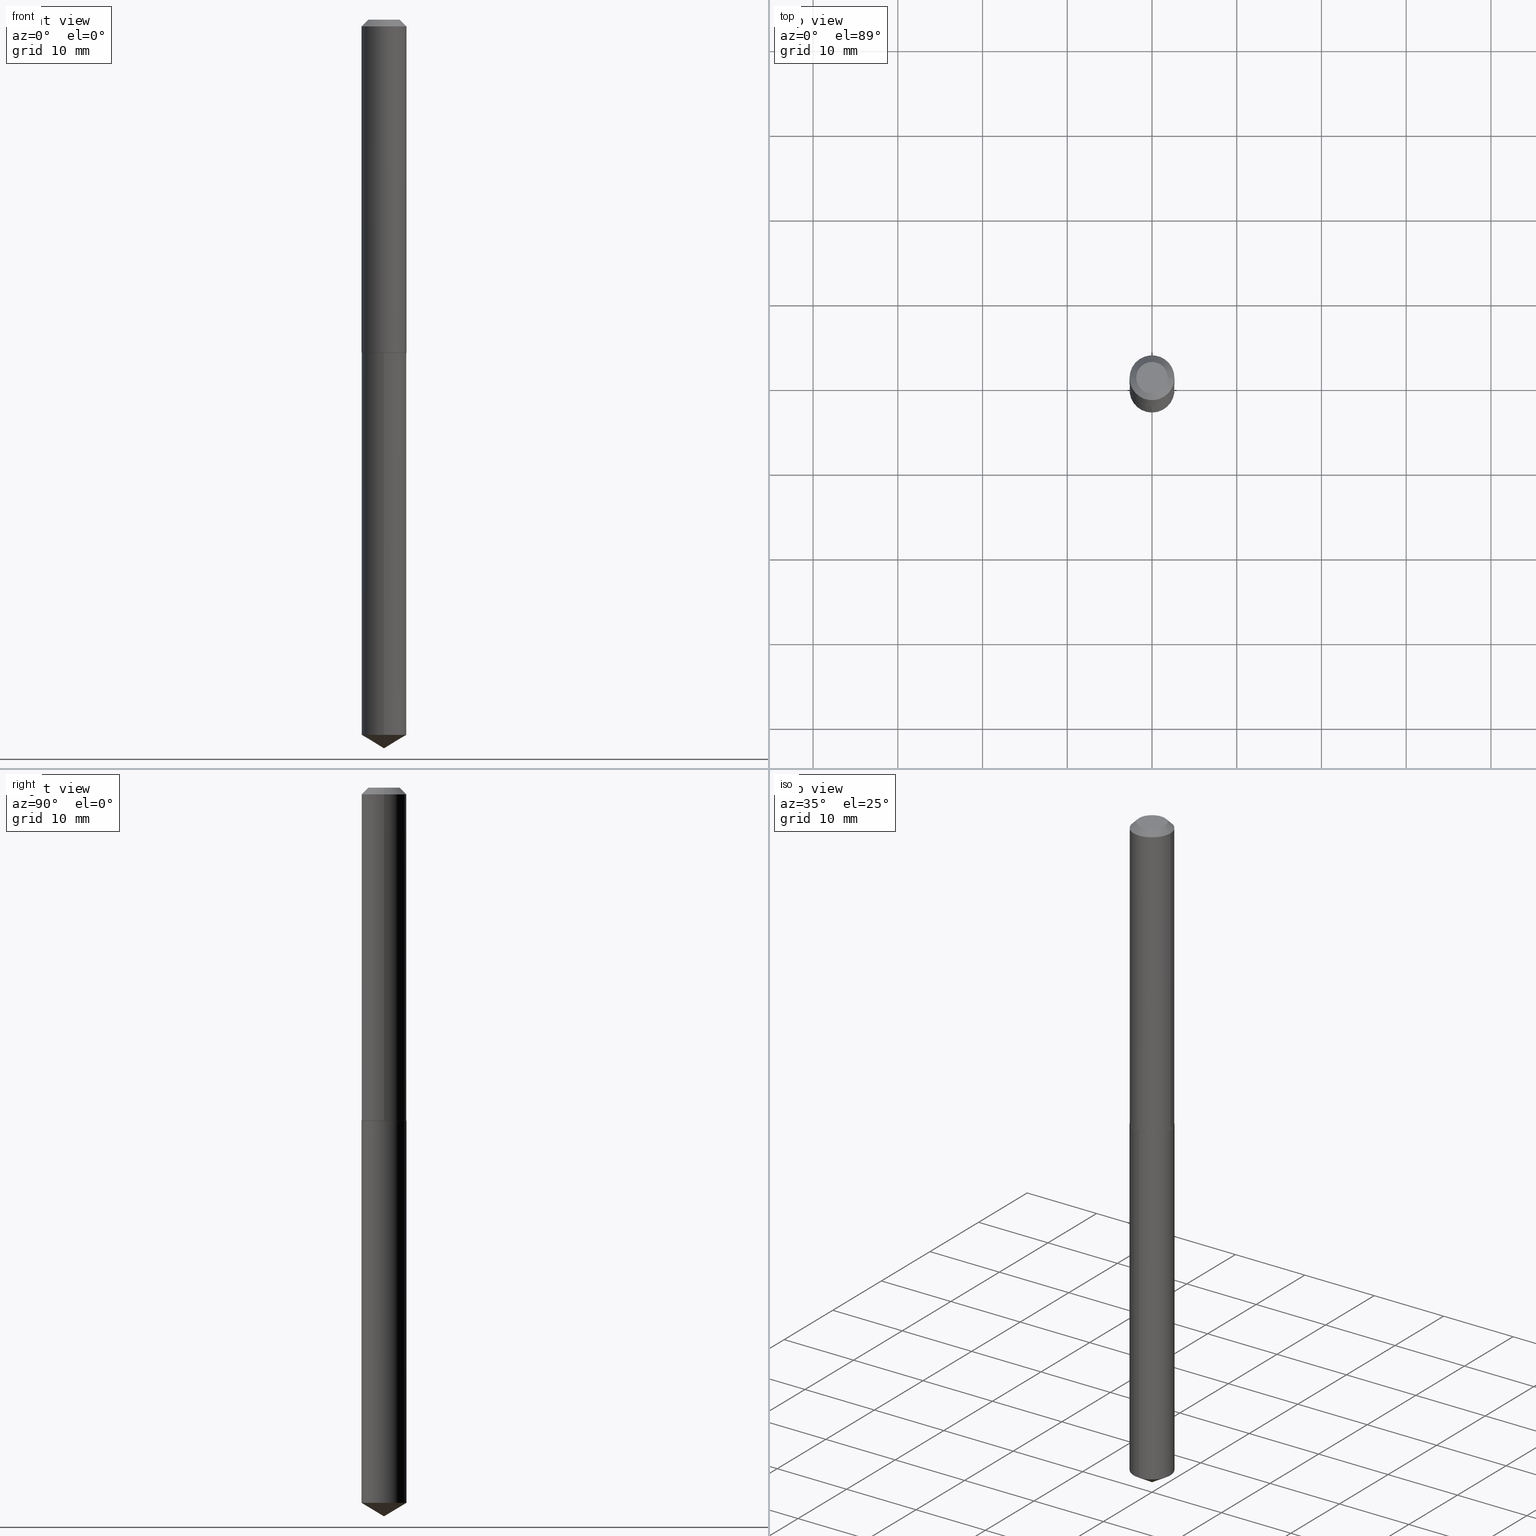
[diagram: canonical four-view strip — front | top / right | iso, engineering-drawing reading convention]
A machine part, canonical four-view strip (front | top / right | iso — engineering-drawing reading convention). The complete STEP part file that produces these views, byte-faithful:
ISO-10303-21;
HEADER;
FILE_DESCRIPTION (( 'STEP AP203' ),
    '1' );
FILE_NAME ('61086.STEP',
    '2024-04-23T03:33:26',
    ( '' ),
    ( '' ),
    'SwSTEP 2.0',
    'SolidWorks 2023',
    '' );
FILE_SCHEMA (( 'CONFIG_CONTROL_DESIGN' ));
ENDSEC;

DATA;
#1 = EDGE_CURVE ( 'NONE', #156, #247, #317, .T. ) ;
#2 = CARTESIAN_POINT ( 'NONE',  ( 3.783873883810261606E-29, -5.402369075591998725E-15, -1.547299999999999898 ) ) ;
#3 = FACE_OUTER_BOUND ( 'NONE', #51, .T. ) ;
#4 = ORIENTED_EDGE ( 'NONE', *, *, #1, .F. ) ;
#5 = DIRECTION ( 'NONE',  ( -2.445468806185136597E-29, 3.491481338843145583E-15, 1.000000000000000000 ) ) ;
#6 = EDGE_CURVE ( 'NONE', #163, #287, #95, .T. ) ;
#7 = VERTEX_POINT ( 'NONE', #265 ) ;
#8 = VECTOR ( 'NONE', #141, 39.37007874015748143 ) ;
#9 = AXIS2_PLACEMENT_3D ( 'NONE', #133, #69, #192 ) ;
#10 = DIRECTION ( 'NONE',  ( 1.000000000000000000, -6.982962677686269077E-15, 0.000000000000000000 ) ) ;
#11 = ORIENTED_EDGE ( 'NONE', *, *, #1, .T. ) ;
#12 = DATE_AND_TIME ( #172, #248 ) ;
#13 = CARTESIAN_POINT ( 'NONE',  ( 8.279856005711560428E-29, -1.182147690713580966E-14, -3.385800000000000143 ) ) ;
#14 = ORIENTED_EDGE ( 'NONE', *, *, #333, .F. ) ;
#15 =( CONVERSION_BASED_UNIT ( 'INCH', #320 ) LENGTH_UNIT ( ) NAMED_UNIT ( #213 ) );
#16 = DIRECTION ( 'NONE',  ( 2.445468806185136597E-29, -3.491481338843145583E-15, -1.000000000000000000 ) ) ;
#17 = CIRCLE ( 'NONE', #153, 0.1043499999999999844 ) ;
#18 = ORIENTED_EDGE ( 'NONE', *, *, #59, .T. ) ;
#19 = UNCERTAINTY_MEASURE_WITH_UNIT (LENGTH_MEASURE( 1.000000000000000082E-05 ), #15, 'distance_accuracy_value', 'NONE');
#20 = DIRECTION ( 'NONE',  ( 1.000000000000000000, -6.982962677686265133E-15, 4.876195246087108042E-29 ) ) ;
#21 = DIRECTION ( 'NONE',  ( 1.000000000000000000, -6.982962677686264344E-15, 0.000000000000000000 ) ) ;
#22 = CC_DESIGN_PERSON_AND_ORGANIZATION_ASSIGNMENT ( #61, #184, ( #217 ) ) ;
#23 = DATE_AND_TIME ( #300, #318 ) ;
#24 = PRODUCT_DEFINITION_FORMATION_WITH_SPECIFIED_SOURCE ( 'ANY', '', #222, .NOT_KNOWN. ) ;
#25 = CONICAL_SURFACE ( 'NONE', #105, 65.52281426576843160, 1.029744258676654534 ) ;
#26 = AXIS2_PLACEMENT_3D ( 'NONE', #264, #16, #120 ) ;
#27 = APPROVAL_DATE_TIME ( #214, #210 ) ;
#28 = CARTESIAN_POINT ( 'NONE',  ( 7.642090019328602662E-31, -1.091087918388490267E-16, -0.03125000000000020817 ) ) ;
#29 = DIRECTION ( 'NONE',  ( 0.000000000000000000, 0.000000000000000000, 1.000000000000000000 ) ) ;
#30 = DIRECTION ( 'NONE',  ( -2.445468806185136597E-29, 3.491481338843145583E-15, 1.000000000000000000 ) ) ;
#31 = EDGE_CURVE ( 'NONE', #287, #104, #282, .T. ) ;
#32 = SECURITY_CLASSIFICATION ( '', '', #345 ) ;
#33 = CARTESIAN_POINT ( 'NONE',  ( 3.783873883810261045E-29, -5.402369075591997936E-15, -1.547299999999999676 ) ) ;
#34 = CC_DESIGN_PERSON_AND_ORGANIZATION_ASSIGNMENT ( #319, #116, ( #24 ) ) ;
#35 = DIRECTION ( 'NONE',  ( -6.982962677686265922E-15, -1.000000000000000000, 3.468864327941594214E-15 ) ) ;
#36 = DIRECTION ( 'NONE',  ( -2.445468806185136597E-29, 3.491481338843145583E-15, 1.000000000000000000 ) ) ;
#37 = APPLICATION_CONTEXT ( 'configuration controlled 3d designs of mechanical parts and assemblies' ) ;
#38 = CIRCLE ( 'NONE', #93, 0.1038500000000004558 ) ;
#39 = DIRECTION ( 'NONE',  ( -2.445422308860357196E-29, 3.491547925658693024E-15, 1.000000000000000000 ) ) ;
#40 = ORIENTED_EDGE ( 'NONE', *, *, #362, .T. ) ;
#41 = EDGE_CURVE ( 'NONE', #163, #55, #89, .T. ) ;
#42 = FACE_OUTER_BOUND ( 'NONE', #342, .T. ) ;
#43 = ORIENTED_EDGE ( 'NONE', *, *, #41, .T. ) ;
#44 = PERSON_AND_ORGANIZATION ( #389, #199 ) ;
#45 = DIRECTION ( 'NONE',  ( -2.445422308860357196E-29, 3.491547925658693024E-15, 1.000000000000000000 ) ) ;
#46 = VERTEX_POINT ( 'NONE', #298 ) ;
#47 = PERSON_AND_ORGANIZATION_ROLE ( 'classification_officer' ) ;
#48 = CLOSED_SHELL ( 'NONE', ( #67, #167, #75, #239, #260, #88, #385, #268 ) ) ;
#49 = DIRECTION ( 'NONE',  ( -2.445422308860357196E-29, 3.491547925658693024E-15, 1.000000000000000000 ) ) ;
#50 = AXIS2_PLACEMENT_3D ( 'NONE', #152, #29, #211 ) ;
#51 = EDGE_LOOP ( 'NONE', ( #348, #364, #259, #225 ) ) ;
#52 = FACE_OUTER_BOUND ( 'NONE', #136, .T. ) ;
#53 = ORIENTED_EDGE ( 'NONE', *, *, #31, .F. ) ;
#54 = CARTESIAN_POINT ( 'NONE',  ( 8.279710853339399417E-29, -1.182168296669520479E-14, -3.385800000000000143 ) ) ;
#55 = VERTEX_POINT ( 'NONE', #215 ) ;
#56 = AXIS2_PLACEMENT_3D ( 'NONE', #64, #30, #379 ) ;
#57 = CIRCLE ( 'NONE', #256, 0.1043499999999999844 ) ;
#58 = CARTESIAN_POINT ( 'NONE',  ( 0.1043499999999999844, -8.250017579063083057E-16, -0.03125000000000020817 ) ) ;
#59 = EDGE_CURVE ( 'NONE', #321, #46, #38, .T. ) ;
#60 = DIRECTION ( 'NONE',  ( -2.445422308860357196E-29, 3.491547925658693024E-15, 1.000000000000000000 ) ) ;
#61 = PERSON_AND_ORGANIZATION ( #389, #199 ) ;
#62 = VECTOR ( 'NONE', #158, 39.37007874015748143 ) ;
#63 = FACE_OUTER_BOUND ( 'NONE', #370, .T. ) ;
#64 = CARTESIAN_POINT ( 'NONE',  ( 0.000000000000000000, 0.000000000000000000, 0.000000000000000000 ) ) ;
#65 = CARTESIAN_POINT ( 'NONE',  ( 7.642090019328602662E-31, -1.091087918388490267E-16, -0.03125000000000020817 ) ) ;
#66 = LOCAL_TIME ( 23, 33, 26.00000000000000000, #154 ) ;
#67 = ADVANCED_FACE ( 'NONE', ( #63 ), #99, .T. ) ;
#68 = PLANE ( 'NONE',  #315 ) ;
#69 = DIRECTION ( 'NONE',  ( -2.445468806185136597E-29, 3.491481338843145583E-15, 1.000000000000000000 ) ) ;
#70 = CC_DESIGN_PERSON_AND_ORGANIZATION_ASSIGNMENT ( #147, #119, ( #24 ) ) ;
#71 = AXIS2_PLACEMENT_3D ( 'NONE', #2, #162, #106 ) ;
#72 = ORIENTED_EDGE ( 'NONE', *, *, #338, .T. ) ;
#73 = CARTESIAN_POINT ( 'NONE',  ( -7.286721554165238553E-16, -0.1043500000000053829, -1.547299999999999676 ) ) ;
#74 = EDGE_LOOP ( 'NONE', ( #263, #197, #129, #200 ) ) ;
#75 = ADVANCED_FACE ( 'NONE', ( #361 ), #233, .T. ) ;
#76 = DIRECTION ( 'NONE',  ( -2.445422308860357196E-29, 3.491547925658693024E-15, 1.000000000000000000 ) ) ;
#77 = VERTEX_POINT ( 'NONE', #332 ) ;
#78 = AXIS2_PLACEMENT_3D ( 'NONE', #226, #36, #343 ) ;
#79 = LINE ( 'NONE', #13, #122 ) ;
#80 = CONICAL_SURFACE ( 'NONE', #151, 65.52281426576843160, 1.029744258676654534 ) ;
#81 = ADVANCED_BREP_SHAPE_REPRESENTATION ( '61086', ( #251, #382, #50 ), #216 ) ;
#82 = ORIENTED_EDGE ( 'NONE', *, *, #338, .F. ) ;
#83 = DATE_TIME_ROLE ( 'classification_date' ) ;
#84 = DIRECTION ( 'NONE',  ( -6.982962677686265922E-15, -1.000000000000000000, 5.235932905920965262E-15 ) ) ;
#85 = CARTESIAN_POINT ( 'NONE',  ( 3.782651149407169365E-29, -5.400623334922577222E-15, -1.546799999999999953 ) ) ;
#86 = DATE_AND_TIME ( #174, #137 ) ;
#87 = ORIENTED_EDGE ( 'NONE', *, *, #180, .F. ) ;
#88 = ADVANCED_FACE ( 'NONE', ( #148 ), #212, .T. ) ;
#89 = CIRCLE ( 'NONE', #356, 0.07309999999999999831 ) ;
#90 = DIRECTION ( 'NONE',  ( -2.445468806185136597E-29, 3.491481338843145583E-15, 1.000000000000000000 ) ) ;
#91 = APPROVAL_STATUS ( 'not_yet_approved' ) ;
#92 = EDGE_CURVE ( 'NONE', #321, #156, #176, .T. ) ;
#93 = AXIS2_PLACEMENT_3D ( 'NONE', #33, #90, #329 ) ;
#94 = DIRECTION ( 'NONE',  ( -2.445468806185136597E-29, 3.491481338843145583E-15, 1.000000000000000000 ) ) ;
#95 = LINE ( 'NONE', #246, #297 ) ;
#96 = EDGE_CURVE ( 'NONE', #314, #171, #190, .T. ) ;
#97 = CYLINDRICAL_SURFACE ( 'NONE', #157, 0.1043500000000000816 ) ;
#98 = CC_DESIGN_APPROVAL ( #210, ( #217 ) ) ;
#99 = CONICAL_SURFACE ( 'NONE', #224, 0.1043499999999999844, 0.7853981633974449483 ) ;
#100 = DIRECTION ( 'NONE',  ( -2.445468806185136597E-29, 3.491481338843145583E-15, 1.000000000000000000 ) ) ;
#101 = DIRECTION ( 'NONE',  ( 6.982962677686265922E-15, 1.000000000000000000, -3.491547925658693418E-15 ) ) ;
#102 = EDGE_CURVE ( 'NONE', #55, #104, #277, .T. ) ;
#103 = DIRECTION ( 'NONE',  ( 2.445422308860356635E-29, -3.491547925658693418E-15, -1.000000000000000000 ) ) ;
#104 = VERTEX_POINT ( 'NONE', #269 ) ;
#105 = AXIS2_PLACEMENT_3D ( 'NONE', #340, #39, #35 ) ;
#106 = DIRECTION ( 'NONE',  ( -6.982962677686265922E-15, -1.000000000000000000, 2.617966452960482631E-15 ) ) ;
#107 = ORIENTED_EDGE ( 'NONE', *, *, #369, .F. ) ;
#108 = EDGE_CURVE ( 'NONE', #7, #314, #383, .T. ) ;
#109 = APPROVAL_DATE_TIME ( #86, #150 ) ;
#110 = LINE ( 'NONE', #373, #270 ) ;
#111 = DIRECTION ( 'NONE',  ( 6.090539988449779224E-15, 0.8571673007021141100, 0.5150380749100511579 ) ) ;
#112 = PRODUCT_DEFINITION_SHAPE ( 'NONE', 'NONE',  #217 ) ;
#113 = ORIENTED_EDGE ( 'NONE', *, *, #92, .T. ) ;
#114 = DIRECTION ( 'NONE',  ( -2.445422308860357196E-29, 3.491547925658693024E-15, 1.000000000000000000 ) ) ;
#115 = ORIENTED_EDGE ( 'NONE', *, *, #311, .T. ) ;
#116 = PERSON_AND_ORGANIZATION_ROLE ( 'design_supplier' ) ;
#117 = CARTESIAN_POINT ( 'NONE',  ( 3.783873883810261606E-29, -5.402369075591998725E-15, -1.547299999999999898 ) ) ;
#118 = CARTESIAN_POINT ( 'NONE',  ( -0.1043500000000001787, -4.659171990156911506E-15, -1.546799999999999953 ) ) ;
#119 = PERSON_AND_ORGANIZATION_ROLE ( 'creator' ) ;
#120 = DIRECTION ( 'NONE',  ( -1.000000000000000000, 6.982962677686266711E-15, 0.000000000000000000 ) ) ;
#121 = CARTESIAN_POINT ( 'NONE',  ( 7.414513447657022001E-16, 0.1043499999999945999, -1.547300000000000120 ) ) ;
#122 = VECTOR ( 'NONE', #111, 39.37007874015748143 ) ;
#123 = AXIS2_PLACEMENT_3D ( 'NONE', #221, #337, #159 ) ;
#124 = COORDINATED_UNIVERSAL_TIME_OFFSET ( 5, 0, .BEHIND. ) ;
#125 = DIRECTION ( 'NONE',  ( -0.7071067811865451302, 2.468850131082231817E-15, -0.7071067811865499042 ) ) ;
#126 = CIRCLE ( 'NONE', #71, 0.1043499999999999844 ) ;
#127 = MECHANICAL_CONTEXT ( 'NONE', #339, 'mechanical' ) ;
#128 = ORIENTED_EDGE ( 'NONE', *, *, #96, .F. ) ;
#129 = ORIENTED_EDGE ( 'NONE', *, *, #6, .T. ) ;
#130 = CARTESIAN_POINT ( 'NONE',  ( 0.000000000000000000, 0.000000000000000000, 0.000000000000000000 ) ) ;
#131 = CIRCLE ( 'NONE', #289, 0.1038500000000004558 ) ;
#132 = VECTOR ( 'NONE', #378, 39.37007874015748143 ) ;
#133 = CARTESIAN_POINT ( 'NONE',  ( 7.642090019328602662E-31, -1.091087918388490267E-16, -0.03125000000000020817 ) ) ;
#134 = ORIENTED_EDGE ( 'NONE', *, *, #306, .F. ) ;
#135 = CARTESIAN_POINT ( 'NONE',  ( 0.1043500000000001787, -6.129295490339141210E-15, -1.546799999999999953 ) ) ;
#136 = EDGE_LOOP ( 'NONE', ( #390, #388, #353, #128 ) ) ;
#137 = LOCAL_TIME ( 23, 33, 26.00000000000000000, #293 ) ;
#138 = CARTESIAN_POINT ( 'NONE',  ( 8.126455295285522582E-29, -1.160266056074924409E-14, -3.323100194404474461 ) ) ;
#139 = EDGE_CURVE ( 'NONE', #104, #287, #271, .T. ) ;
#140 = APPROVAL_STATUS ( 'not_yet_approved' ) ;
#141 = DIRECTION ( 'NONE',  ( -5.985567269335943646E-15, -0.8571673007021105573, 0.5150380749100571531 ) ) ;
#142 = ORIENTED_EDGE ( 'NONE', *, *, #333, .T. ) ;
#143 = APPROVAL_DATE_TIME ( #377, #279 ) ;
#144 = ORIENTED_EDGE ( 'NONE', *, *, #311, .F. ) ;
#145 = DIRECTION ( 'NONE',  ( -6.982962677686265922E-15, -1.000000000000000000, 2.617966452960482631E-15 ) ) ;
#146 = ORIENTED_EDGE ( 'NONE', *, *, #160, .F. ) ;
#147 = PERSON_AND_ORGANIZATION ( #389, #199 ) ;
#148 = FACE_OUTER_BOUND ( 'NONE', #227, .T. ) ;
#149 = DESIGN_CONTEXT ( 'detailed design', #37, 'design' ) ;
#150 = APPROVAL ( #140, 'UNSPECIFIED' ) ;
#151 = AXIS2_PLACEMENT_3D ( 'NONE', #381, #114, #325 ) ;
#152 = CARTESIAN_POINT ( 'NONE',  ( 0.000000000000000000, 0.000000000000000000, 0.000000000000000000 ) ) ;
#153 = AXIS2_PLACEMENT_3D ( 'NONE', #138, #45, #193 ) ;
#154 = COORDINATED_UNIVERSAL_TIME_OFFSET ( 5, 0, .BEHIND. ) ;
#155 = DATE_TIME_ROLE ( 'creation_date' ) ;
#156 = VERTEX_POINT ( 'NONE', #281 ) ;
#157 = AXIS2_PLACEMENT_3D ( 'NONE', #130, #100, #367 ) ;
#158 = DIRECTION ( 'NONE',  ( -0.7071067811866199593, 7.493145998870616062E-15, 0.7071067811864750752 ) ) ;
#159 = DIRECTION ( 'NONE',  ( -1.000000000000000000, 6.982962677686265922E-15, -4.876176775795935793E-29 ) ) ;
#160 = EDGE_CURVE ( 'NONE', #55, #163, #240, .T. ) ;
#161 = CARTESIAN_POINT ( 'NONE',  ( 3.783873883810261606E-29, -5.402369075591998725E-15, -1.547299999999999898 ) ) ;
#162 = DIRECTION ( 'NONE',  ( -2.445422308860357196E-29, 3.491547925658693024E-15, 1.000000000000000000 ) ) ;
#163 = VERTEX_POINT ( 'NONE', #252 ) ;
#164 = CARTESIAN_POINT ( 'NONE',  ( 3.782651149407169365E-29, -5.400623334922577222E-15, -1.546799999999999953 ) ) ;
#165 = EDGE_LOOP ( 'NONE', ( #72, #113, #307, #144 ) ) ;
#166 = PERSON_AND_ORGANIZATION ( #389, #199 ) ;
#167 = ADVANCED_FACE ( 'NONE', ( #3 ), #97, .T. ) ;
#168 = VECTOR ( 'NONE', #322, 39.37007874015748143 ) ;
#169 = ORIENTED_EDGE ( 'NONE', *, *, #139, .T. ) ;
#170 = CARTESIAN_POINT ( 'NONE',  ( 8.126455295285522582E-29, -1.160266056074924409E-14, -3.323100194404474461 ) ) ;
#171 = VERTEX_POINT ( 'NONE', #73 ) ;
#172 = CALENDAR_DATE ( 2024, 22, 4 ) ;
#173 = LINE ( 'NONE', #328, #183 ) ;
#174 = CALENDAR_DATE ( 2024, 22, 4 ) ;
#175 = DIRECTION ( 'NONE',  ( -2.445468806185136597E-29, 3.491481338843145583E-15, 1.000000000000000000 ) ) ;
#176 = LINE ( 'NONE', #118, #62 ) ;
#177 = AXIS2_PLACEMENT_3D ( 'NONE', #284, #313, #194 ) ;
#178 = AXIS2_PLACEMENT_3D ( 'NONE', #296, #354, #278 ) ;
#179 = APPLICATION_PROTOCOL_DEFINITION ( 'international standard', 'config_control_design', 1994, #339 ) ;
#180 = EDGE_CURVE ( 'NONE', #7, #285, #17, .T. ) ;
#181 = DIRECTION ( 'NONE',  ( 0.7071067811865451302, -7.319954787623248157E-15, -0.7071067811865499042 ) ) ;
#182 = CARTESIAN_POINT ( 'NONE',  ( 3.783873883810261045E-29, -5.402369075591997936E-15, -1.547299999999999676 ) ) ;
#183 = VECTOR ( 'NONE', #294, 39.37007874015748143 ) ;
#184 = PERSON_AND_ORGANIZATION_ROLE ( 'creator' ) ;
#185 = DIRECTION ( 'NONE',  ( 2.445468806185136597E-29, -3.491481338843145583E-15, -1.000000000000000000 ) ) ;
#186 = EDGE_CURVE ( 'NONE', #247, #156, #365, .T. ) ;
#187 = DIRECTION ( 'NONE',  ( -2.445468806185136597E-29, 3.491481338843145583E-15, 1.000000000000000000 ) ) ;
#188 = APPLICATION_PROTOCOL_DEFINITION ( 'international standard', 'config_control_design', 1994, #37 ) ;
#189 = ORIENTED_EDGE ( 'NONE', *, *, #92, .F. ) ;
#190 = CIRCLE ( 'NONE', #178, 0.1043499999999999844 ) ;
#191 = FACE_OUTER_BOUND ( 'NONE', #372, .T. ) ;
#192 = DIRECTION ( 'NONE',  ( 1.000000000000000000, -6.982962677686266711E-15, 0.000000000000000000 ) ) ;
#193 = DIRECTION ( 'NONE',  ( -6.982962677686265922E-15, -1.000000000000000000, 5.235932905920965262E-15 ) ) ;
#194 = DIRECTION ( 'NONE',  ( 1.000000000000000000, -6.982962677686265133E-15, 4.876195246087108042E-29 ) ) ;
#195 = EDGE_CURVE ( 'NONE', #171, #314, #126, .T. ) ;
#196 = PLANE ( 'NONE',  #123 ) ;
#197 = ORIENTED_EDGE ( 'NONE', *, *, #41, .F. ) ;
#198 = CYLINDRICAL_SURFACE ( 'NONE', #384, 0.1043499999999999844 ) ;
#199 = ORGANIZATION ( 'UNSPECIFIED', 'UNSPECIFIED', '' ) ;
#200 = ORIENTED_EDGE ( 'NONE', *, *, #31, .T. ) ;
#201 = CC_DESIGN_DATE_AND_TIME_ASSIGNMENT ( #12, #83, ( #32 ) ) ;
#202 = ORIENTED_EDGE ( 'NONE', *, *, #195, .T. ) ;
#203 =( NAMED_UNIT ( * ) SI_UNIT ( $, .STERADIAN. ) SOLID_ANGLE_UNIT ( ) );
#204 = CARTESIAN_POINT ( 'NONE',  ( -5.989671091818620503E-48, 8.551662891793900737E-34, 2.449293598294692806E-19 ) ) ;
#205 = LINE ( 'NONE', #54, #8 ) ;
#206 = DIRECTION ( 'NONE',  ( 1.000000000000000000, -6.982962677686266711E-15, 0.000000000000000000 ) ) ;
#207 = AXIS2_PLACEMENT_3D ( 'NONE', #164, #5, #10 ) ;
#208 = CC_DESIGN_APPROVAL ( #279, ( #24 ) ) ;
#209 = DIRECTION ( 'NONE',  ( -2.445468806185136597E-29, 3.491481338843145583E-15, 1.000000000000000000 ) ) ;
#210 = APPROVAL ( #245, 'UNSPECIFIED' ) ;
#211 = DIRECTION ( 'NONE',  ( 1.000000000000000000, 0.000000000000000000, 0.000000000000000000 ) ) ;
#212 = CYLINDRICAL_SURFACE ( 'NONE', #56, 0.1043500000000000816 ) ;
#213 = DIMENSIONAL_EXPONENTS ( 1.000000000000000000, 0.000000000000000000, 0.000000000000000000, 0.000000000000000000, 0.000000000000000000, 0.000000000000000000, 0.000000000000000000 ) ;
#214 = DATE_AND_TIME ( #304, #368 ) ;
#215 = CARTESIAN_POINT ( 'NONE',  ( 0.07309999999999999831, -6.632520807717034762E-16, 2.449293598335726669E-19 ) ) ;
#216 =( GEOMETRIC_REPRESENTATION_CONTEXT ( 3 ) GLOBAL_UNCERTAINTY_ASSIGNED_CONTEXT ( ( #19 ) ) GLOBAL_UNIT_ASSIGNED_CONTEXT ( ( #15, #347, #203 ) ) REPRESENTATION_CONTEXT ( 'NONE', 'WORKASPACE' ) );
#217 = PRODUCT_DEFINITION ( 'UNKNOWN', '', #24, #149 ) ;
#218 = DIRECTION ( 'NONE',  ( -2.438088387897960049E-29, 3.491481338843145188E-15, 1.000000000000000000 ) ) ;
#219 = CONICAL_SURFACE ( 'NONE', #78, 0.1043500000000001787, 0.7853981633975507526 ) ;
#220 = CARTESIAN_POINT ( 'NONE',  ( 6.626136978695149942E-29, -1.332086552147888530E-15, -1.547299999999999676 ) ) ;
#221 = CARTESIAN_POINT ( 'NONE',  ( -2.994835545909310251E-48, 4.275831445896950368E-34, 1.224646799147346403E-19 ) ) ;
#222 = PRODUCT ( '61086', '61086', '', ( #127 ) ) ;
#223 = CARTESIAN_POINT ( 'NONE',  ( -7.286721554164805666E-16, -0.1043500000000116140, -3.323100194404473573 ) ) ;
#224 = AXIS2_PLACEMENT_3D ( 'NONE', #28, #185, #244 ) ;
#225 = ORIENTED_EDGE ( 'NONE', *, *, #362, .F. ) ;
#226 = CARTESIAN_POINT ( 'NONE',  ( 3.782651149407169365E-29, -5.400623334922577222E-15, -1.546799999999999953 ) ) ;
#227 = EDGE_LOOP ( 'NONE', ( #134, #11, #40, #53 ) ) ;
#228 = COORDINATED_UNIVERSAL_TIME_OFFSET ( 5, 0, .BEHIND. ) ;
#229 = ORIENTED_EDGE ( 'NONE', *, *, #160, .T. ) ;
#230 = FACE_OUTER_BOUND ( 'NONE', #74, .T. ) ;
#231 = AXIS2_PLACEMENT_3D ( 'NONE', #258, #76, #371 ) ;
#232 = EDGE_LOOP ( 'NONE', ( #323, #376, #14 ) ) ;
#233 = CONICAL_SURFACE ( 'NONE', #255, 0.1043500000000001787, 0.7853981633975507526 ) ;
#234 = ORIENTED_EDGE ( 'NONE', *, *, #59, .F. ) ;
#235 =( LENGTH_UNIT ( ) NAMED_UNIT ( * ) SI_UNIT ( $, .METRE. ) );
#236 = DIRECTION ( 'NONE',  ( -2.445468806185136597E-29, 3.491481338843145583E-15, 1.000000000000000000 ) ) ;
#237 = LINE ( 'NONE', #291, #168 ) ;
#238 = EDGE_LOOP ( 'NONE', ( #107, #292, #87 ) ) ;
#239 = ADVANCED_FACE ( 'NONE', ( #310 ), #308, .F. ) ;
#240 = CIRCLE ( 'NONE', #177, 0.07309999999999999831 ) ;
#241 = PERSON_AND_ORGANIZATION ( #389, #199 ) ;
#242 = PERSON_AND_ORGANIZATION ( #389, #199 ) ;
#243 = VECTOR ( 'NONE', #357, 39.37007874015748143 ) ;
#244 = DIRECTION ( 'NONE',  ( -1.000000000000000000, 6.982962677686266711E-15, 0.000000000000000000 ) ) ;
#245 = APPROVAL_STATUS ( 'not_yet_approved' ) ;
#246 = CARTESIAN_POINT ( 'NONE',  ( -0.1043499999999999844, 6.195633635777128172E-16, -0.03125000000000020817 ) ) ;
#247 = VERTEX_POINT ( 'NONE', #135 ) ;
#248 = LOCAL_TIME ( 23, 33, 26.00000000000000000, #228 ) ;
#249 = AXIS2_PLACEMENT_3D ( 'NONE', #65, #209, #206 ) ;
#250 = CC_DESIGN_APPROVAL ( #150, ( #32 ) ) ;
#251 = MANIFOLD_SOLID_BREP ( 'Body-Move/Copy2[1]', #326 ) ;
#252 = CARTESIAN_POINT ( 'NONE',  ( -0.07309999999999999831, 5.650089676582893516E-16, 2.449293598257089505E-19 ) ) ;
#253 = ADVANCED_FACE ( 'NONE', ( #254 ), #25, .T. ) ;
#254 = FACE_OUTER_BOUND ( 'NONE', #232, .T. ) ;
#255 = AXIS2_PLACEMENT_3D ( 'NONE', #327, #236, #303 ) ;
#256 = AXIS2_PLACEMENT_3D ( 'NONE', #170, #60, #84 ) ;
#257 = ORIENTED_EDGE ( 'NONE', *, *, #96, .T. ) ;
#258 = CARTESIAN_POINT ( 'NONE',  ( 3.783873883810261606E-29, -5.402369075591998725E-15, -1.547299999999999898 ) ) ;
#259 = ORIENTED_EDGE ( 'NONE', *, *, #139, .F. ) ;
#260 = ADVANCED_FACE ( 'NONE', ( #191 ), #219, .T. ) ;
#261 = CARTESIAN_POINT ( 'NONE',  ( -7.286721554165238553E-16, -0.1043500000000053829, -1.547299999999999676 ) ) ;
#262 = ORIENTED_EDGE ( 'NONE', *, *, #301, .F. ) ;
#263 = ORIENTED_EDGE ( 'NONE', *, *, #102, .F. ) ;
#264 = CARTESIAN_POINT ( 'NONE',  ( 7.642090019328602662E-31, -1.091087918388490267E-16, -0.03125000000000020817 ) ) ;
#265 = CARTESIAN_POINT ( 'NONE',  ( 7.414513447657457846E-16, 0.1043499999999883965, -3.323100194404474905 ) ) ;
#266 = APPROVAL_ROLE ( '' ) ;
#267 = CARTESIAN_POINT ( 'NONE',  ( -0.1043499999999999844, -2.013414718615047446E-15, -0.03125000000000020817 ) ) ;
#268 = ADVANCED_FACE ( 'NONE', ( #42 ), #196, .F. ) ;
#269 = CARTESIAN_POINT ( 'NONE',  ( 0.1043499999999999844, -8.377809472554109199E-16, -0.03125000000000020817 ) ) ;
#270 = VECTOR ( 'NONE', #355, 39.37007874015748143 ) ;
#271 = CIRCLE ( 'NONE', #9, 0.1043499999999999844 ) ;
#272 = CC_DESIGN_PERSON_AND_ORGANIZATION_ASSIGNMENT ( #242, #359, ( #222 ) ) ;
#273 = CALENDAR_DATE ( 2024, 22, 4 ) ;
#274 = APPROVAL_ROLE ( '' ) ;
#275 = DIRECTION ( 'NONE',  ( 1.000000000000000000, -6.982962677686269077E-15, 0.000000000000000000 ) ) ;
#276 = APPROVAL_PERSON_ORGANIZATION ( #241, #279, #274 ) ;
#277 = LINE ( 'NONE', #58, #335 ) ;
#278 = DIRECTION ( 'NONE',  ( -6.982962677686265922E-15, -1.000000000000000000, 2.617966452960482631E-15 ) ) ;
#279 = APPROVAL ( #91, 'UNSPECIFIED' ) ;
#280 = FACE_OUTER_BOUND ( 'NONE', #312, .T. ) ;
#281 = CARTESIAN_POINT ( 'NONE',  ( -0.1043500000000001787, -4.659171990156911506E-15, -1.546799999999999953 ) ) ;
#282 = CIRCLE ( 'NONE', #249, 0.1043499999999999844 ) ;
#283 = ADVANCED_FACE ( 'NONE', ( #280 ), #68, .F. ) ;
#284 = CARTESIAN_POINT ( 'NONE',  ( -5.989671091818620503E-48, 8.551662891793900737E-34, 2.449293598294692806E-19 ) ) ;
#285 = VERTEX_POINT ( 'NONE', #223 ) ;
#286 = ADVANCED_FACE ( 'NONE', ( #341 ), #316, .T. ) ;
#287 = VERTEX_POINT ( 'NONE', #267 ) ;
#288 = ADVANCED_FACE ( 'NONE', ( #295 ), #80, .T. ) ;
#289 = AXIS2_PLACEMENT_3D ( 'NONE', #182, #175, #21 ) ;
#290 = EDGE_LOOP ( 'NONE', ( #82, #234 ) ) ;
#291 = CARTESIAN_POINT ( 'NONE',  ( 0.1043500000000000816, -7.286721554165625095E-16, 5.088290465543062912E-30 ) ) ;
#292 = ORIENTED_EDGE ( 'NONE', *, *, #380, .T. ) ;
#293 = COORDINATED_UNIVERSAL_TIME_OFFSET ( 5, 0, .BEHIND. ) ;
#294 = DIRECTION ( 'NONE',  ( 0.7071067811866199593, -2.468850131083015945E-15, 0.7071067811864750752 ) ) ;
#295 = FACE_OUTER_BOUND ( 'NONE', #238, .T. ) ;
#296 = CARTESIAN_POINT ( 'NONE',  ( 3.783873883810261606E-29, -5.402369075591998725E-15, -1.547299999999999898 ) ) ;
#297 = VECTOR ( 'NONE', #125, 39.37007874015748143 ) ;
#298 = CARTESIAN_POINT ( 'NONE',  ( 0.1038500000000004558, -6.127549749669719707E-15, -1.547299999999999676 ) ) ;
#299 = LINE ( 'NONE', #261, #132 ) ;
#300 = CALENDAR_DATE ( 2024, 22, 4 ) ;
#301 = EDGE_CURVE ( 'NONE', #285, #171, #299, .T. ) ;
#302 = CC_DESIGN_SECURITY_CLASSIFICATION ( #32, ( #24 ) ) ;
#303 = DIRECTION ( 'NONE',  ( 1.000000000000000000, -6.982962677686269077E-15, 0.000000000000000000 ) ) ;
#304 = CALENDAR_DATE ( 2024, 22, 4 ) ;
#305 = APPROVAL_PERSON_ORGANIZATION ( #166, #150, #266 ) ;
#306 = EDGE_CURVE ( 'NONE', #156, #287, #110, .T. ) ;
#307 = ORIENTED_EDGE ( 'NONE', *, *, #186, .F. ) ;
#308 = PLANE ( 'NONE',  #386 ) ;
#309 = ORIENTED_EDGE ( 'NONE', *, *, #195, .F. ) ;
#310 = FACE_OUTER_BOUND ( 'NONE', #290, .T. ) ;
#311 = EDGE_CURVE ( 'NONE', #46, #247, #173, .T. ) ;
#312 = EDGE_LOOP ( 'NONE', ( #202, #257 ) ) ;
#313 = DIRECTION ( 'NONE',  ( -2.445468806185136597E-29, 3.491481338843145583E-15, 1.000000000000000000 ) ) ;
#314 = VERTEX_POINT ( 'NONE', #349 ) ;
#315 = AXIS2_PLACEMENT_3D ( 'NONE', #161, #103, #101 ) ;
#316 = CYLINDRICAL_SURFACE ( 'NONE', #231, 0.1043499999999999844 ) ;
#317 = CIRCLE ( 'NONE', #375, 0.1043500000000001787 ) ;
#318 = LOCAL_TIME ( 23, 33, 26.00000000000000000, #124 ) ;
#319 = PERSON_AND_ORGANIZATION ( #389, #199 ) ;
#320 = LENGTH_MEASURE_WITH_UNIT ( LENGTH_MEASURE( 0.02539999999999999897 ), #235 );
#321 = VERTEX_POINT ( 'NONE', #352 ) ;
#322 = DIRECTION ( 'NONE',  ( -2.445468806185136877E-29, 3.491481338843145188E-15, 1.000000000000000000 ) ) ;
#323 = ORIENTED_EDGE ( 'NONE', *, *, #380, .F. ) ;
#324 = ADVANCED_FACE ( 'NONE', ( #52 ), #198, .T. ) ;
#325 = DIRECTION ( 'NONE',  ( -6.982962677686265922E-15, -1.000000000000000000, 3.468864327941594214E-15 ) ) ;
#326 = CLOSED_SHELL ( 'NONE', ( #286, #253, #288, #324, #283 ) ) ;
#327 = CARTESIAN_POINT ( 'NONE',  ( 3.782651149407169365E-29, -5.400623334922577222E-15, -1.546799999999999953 ) ) ;
#328 = CARTESIAN_POINT ( 'NONE',  ( 0.1043500000000001787, -6.129295490339141210E-15, -1.546799999999999953 ) ) ;
#329 = DIRECTION ( 'NONE',  ( 1.000000000000000000, -6.982962677686264344E-15, 0.000000000000000000 ) ) ;
#330 = APPROVAL_ROLE ( '' ) ;
#331 = PRODUCT_RELATED_PRODUCT_CATEGORY ( 'detail', '', ( #222 ) ) ;
#332 = CARTESIAN_POINT ( 'NONE',  ( 8.279710853339398296E-29, -1.182168296669520479E-14, -3.385800000000000143 ) ) ;
#333 = EDGE_CURVE ( 'NONE', #285, #7, #57, .T. ) ;
#334 = ORIENTED_EDGE ( 'NONE', *, *, #102, .T. ) ;
#335 = VECTOR ( 'NONE', #181, 39.37007874015748143 ) ;
#336 = DIRECTION ( 'NONE',  ( 1.000000000000000000, -6.982962677686265922E-15, 4.876176775795935793E-29 ) ) ;
#337 = DIRECTION ( 'NONE',  ( 2.438088387897960049E-29, -3.491481338843145188E-15, -1.000000000000000000 ) ) ;
#338 = EDGE_CURVE ( 'NONE', #46, #321, #131, .T. ) ;
#339 = APPLICATION_CONTEXT ( 'configuration controlled 3d designs of mechanical parts and assemblies' ) ;
#340 = CARTESIAN_POINT ( 'NONE',  ( -8.799668605411994457E-28, 1.256409368213007750E-13, 35.98427874015747818 ) ) ;
#341 = FACE_OUTER_BOUND ( 'NONE', #344, .T. ) ;
#342 = EDGE_LOOP ( 'NONE', ( #43, #229 ) ) ;
#343 = DIRECTION ( 'NONE',  ( 1.000000000000000000, -6.982962677686269077E-15, 0.000000000000000000 ) ) ;
#344 = EDGE_LOOP ( 'NONE', ( #142, #350, #309, #262 ) ) ;
#345 = SECURITY_CLASSIFICATION_LEVEL ( 'unclassified' ) ;
#346 = CC_DESIGN_DATE_AND_TIME_ASSIGNMENT ( #23, #155, ( #217 ) ) ;
#347 =( NAMED_UNIT ( * ) PLANE_ANGLE_UNIT ( ) SI_UNIT ( $, .RADIAN. ) );
#348 = ORIENTED_EDGE ( 'NONE', *, *, #186, .T. ) ;
#349 = CARTESIAN_POINT ( 'NONE',  ( 7.414513447657459819E-16, 0.1043499999999945999, -1.547300000000000120 ) ) ;
#350 = ORIENTED_EDGE ( 'NONE', *, *, #108, .T. ) ;
#351 = SHAPE_DEFINITION_REPRESENTATION ( #112, #81 ) ;
#352 = CARTESIAN_POINT ( 'NONE',  ( -0.1038500000000004558, -4.661821217331020341E-15, -1.547299999999999676 ) ) ;
#353 = ORIENTED_EDGE ( 'NONE', *, *, #301, .T. ) ;
#354 = DIRECTION ( 'NONE',  ( -2.445422308860357196E-29, 3.491547925658693024E-15, 1.000000000000000000 ) ) ;
#355 = DIRECTION ( 'NONE',  ( -2.445468806185136877E-29, 3.491481338843145188E-15, 1.000000000000000000 ) ) ;
#356 = AXIS2_PLACEMENT_3D ( 'NONE', #204, #187, #20 ) ;
#357 = DIRECTION ( 'NONE',  ( -2.445422308860357476E-29, 3.491547925658693418E-15, 1.000000000000000000 ) ) ;
#358 = CC_DESIGN_PERSON_AND_ORGANIZATION_ASSIGNMENT ( #44, #47, ( #32 ) ) ;
#359 = PERSON_AND_ORGANIZATION_ROLE ( 'design_owner' ) ;
#360 = PERSON_AND_ORGANIZATION ( #389, #199 ) ;
#361 = FACE_OUTER_BOUND ( 'NONE', #165, .T. ) ;
#362 = EDGE_CURVE ( 'NONE', #247, #104, #237, .T. ) ;
#363 = COORDINATED_UNIVERSAL_TIME_OFFSET ( 5, 0, .BEHIND. ) ;
#364 = ORIENTED_EDGE ( 'NONE', *, *, #306, .T. ) ;
#365 = CIRCLE ( 'NONE', #207, 0.1043500000000001787 ) ;
#366 = APPROVAL_PERSON_ORGANIZATION ( #360, #210, #330 ) ;
#367 = DIRECTION ( 'NONE',  ( 1.000000000000000000, -6.982962677686266711E-15, 4.876176775795935793E-29 ) ) ;
#368 = LOCAL_TIME ( 23, 33, 26.00000000000000000, #363 ) ;
#369 = EDGE_CURVE ( 'NONE', #77, #7, #79, .T. ) ;
#370 = EDGE_LOOP ( 'NONE', ( #146, #334, #169, #374 ) ) ;
#371 = DIRECTION ( 'NONE',  ( -6.982962677686265922E-15, -1.000000000000000000, 2.617966452960482631E-15 ) ) ;
#372 = EDGE_LOOP ( 'NONE', ( #189, #18, #115, #4 ) ) ;
#373 = CARTESIAN_POINT ( 'NONE',  ( -0.1043500000000000816, 7.414513447656651236E-16, -5.132908766680998310E-30 ) ) ;
#374 = ORIENTED_EDGE ( 'NONE', *, *, #6, .F. ) ;
#375 = AXIS2_PLACEMENT_3D ( 'NONE', #85, #94, #275 ) ;
#376 = ORIENTED_EDGE ( 'NONE', *, *, #369, .T. ) ;
#377 = DATE_AND_TIME ( #273, #66 ) ;
#378 = DIRECTION ( 'NONE',  ( -2.445422308860357476E-29, 3.491547925658693418E-15, 1.000000000000000000 ) ) ;
#379 = DIRECTION ( 'NONE',  ( 1.000000000000000000, -6.982962677686266711E-15, 4.876176775795935793E-29 ) ) ;
#380 = EDGE_CURVE ( 'NONE', #77, #285, #205, .T. ) ;
#381 = CARTESIAN_POINT ( 'NONE',  ( -8.799668605411994457E-28, 1.256409368213007750E-13, 35.98427874015747818 ) ) ;
#382 = MANIFOLD_SOLID_BREP ( 'Body-Move/Copy2[2]', #48 ) ;
#383 = LINE ( 'NONE', #121, #243 ) ;
#384 = AXIS2_PLACEMENT_3D ( 'NONE', #117, #49, #145 ) ;
#385 = ADVANCED_FACE ( 'NONE', ( #230 ), #387, .T. ) ;
#386 = AXIS2_PLACEMENT_3D ( 'NONE', #220, #218, #336 ) ;
#387 = CONICAL_SURFACE ( 'NONE', #26, 0.1043499999999999844, 0.7853981633974449483 ) ;
#388 = ORIENTED_EDGE ( 'NONE', *, *, #180, .T. ) ;
#389 = PERSON ( 'UNSPECIFIED', 'UNSPECIFIED', 'UNSPECIFIED', ('UNSPECIFIED'), ('UNSPECIFIED'), ('UNSPECIFIED') ) ;
#390 = ORIENTED_EDGE ( 'NONE', *, *, #108, .F. ) ;
ENDSEC;
END-ISO-10303-21;
